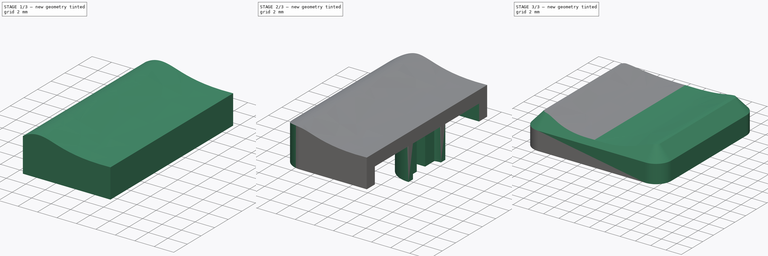
[diagram: build sequence overview — one tinted view per stage of 3, left to right]
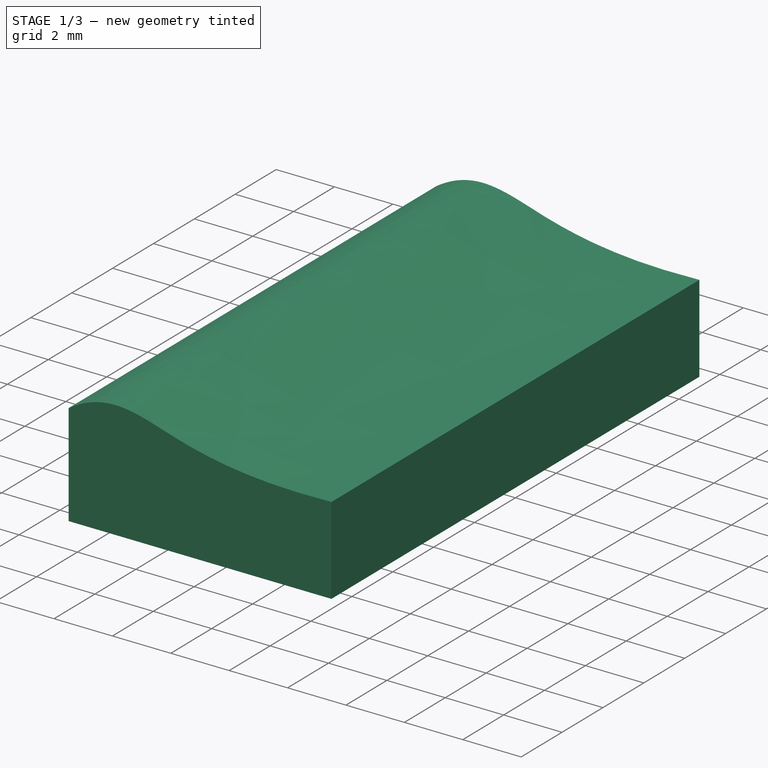
[diagram: stage 1 of 3 — iso view after this stage's code; geometry added in this stage tinted green]
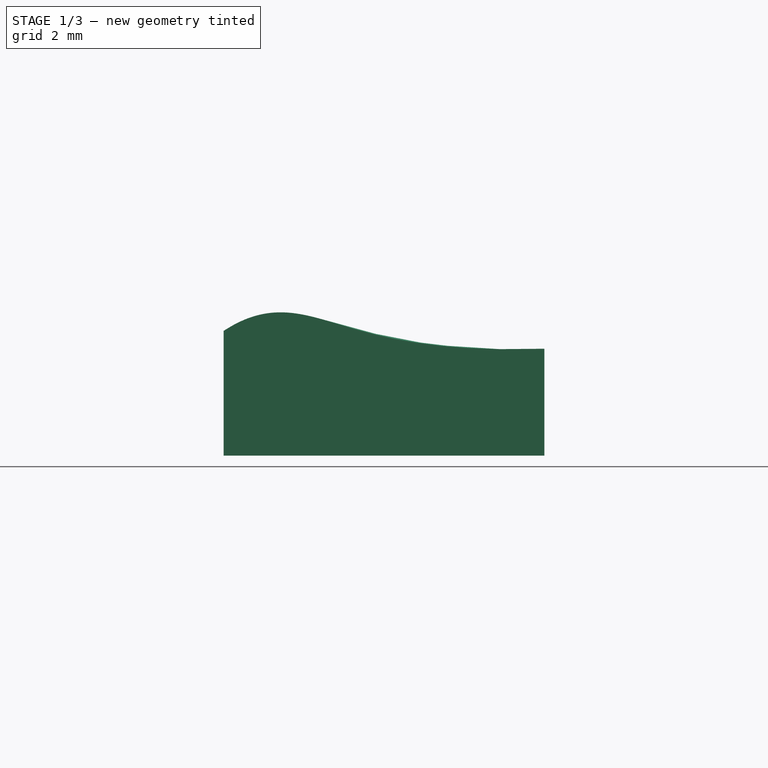
[diagram: stage 1 of 3 — front view after this stage's code; geometry added in this stage tinted green]
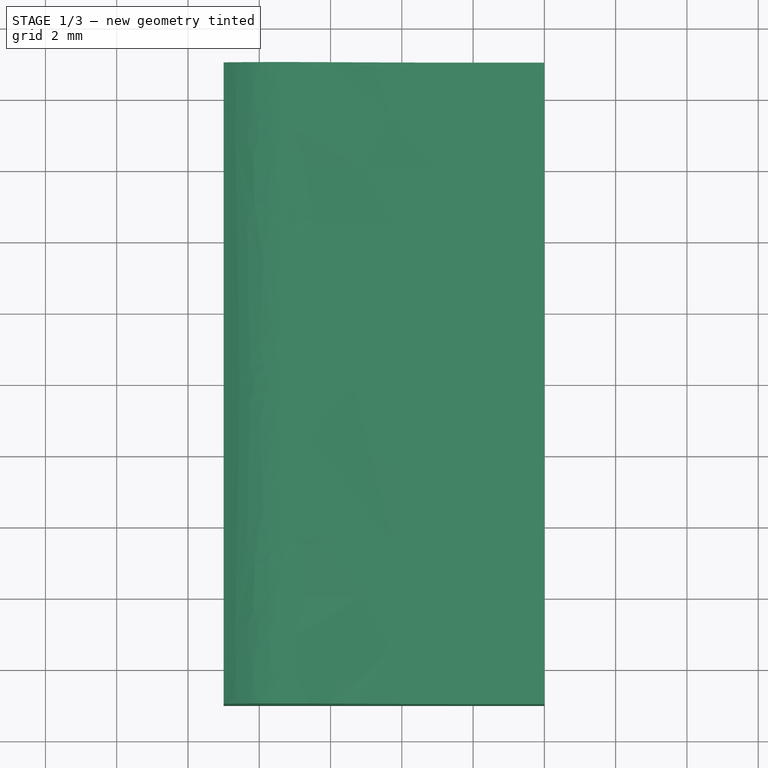
[diagram: stage 1 of 3 — top view after this stage's code; geometry added in this stage tinted green]
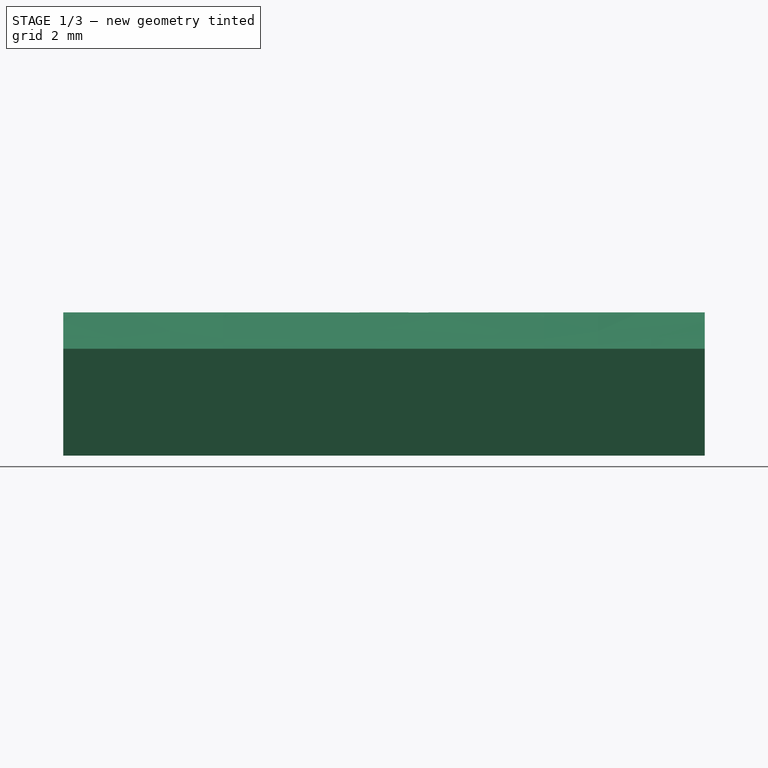
[diagram: stage 1 of 3 — right view after this stage's code; geometry added in this stage tinted green]
FCSTD DOCUMENT  (FreeCAD 1.0R39319 (Git))
Label: PLASTIC-LOW-PROFILE-KEYCAP_THT
License: All rights reserved
LicenseURL: https://en.wikipedia.org/wiki/All_rights_reserved
objects: Sketcher::SketchObject×10, PartDesign::Pad×3, PartDesign::Pocket×2, PartDesign::Plane×1, PartDesign::SubtractivePipe×1, PartDesign::Mirrored×1, PartDesign::CoordinateSystem×1, PartDesign::Body×1
note: 43 computed .brp shape members not serialized (recipe doc carries the construction recipe); baked Part::Feature solids carry a one-line shape summary decoded from their .brp

FEATURE [Sketcher::SketchObject] Sketch
  ArcFitTolerance = 0
  AttachmentSupport = -> [XY_Plane]
  FullyConstrained = true
  MakeInternals = false
  MapMode = 5
  sketch-geometry (5):
    g0: LineSegment StartX=-9 StartY=-9 StartZ=0 EndX=-9 EndY=9 EndZ=0
    g1: LineSegment StartX=-9 StartY=9 StartZ=0 EndX=0 EndY=9 EndZ=0
    g2: LineSegment StartX=0 StartY=-9 StartZ=0 EndX=-9 EndY=-9 EndZ=0
    g3: GeomPoint [constr] X=0 Y=0 Z=0
    g4: LineSegment StartX=0 StartY=9 StartZ=0 EndX=0 EndY=-9 EndZ=0
  constraints (12):
    c: Horizontal(g2)
    c: Vertical(g0)
    c: Coincident(g3,g-1)
    c: Vertical(g4)
    c: Coincident(g1,g4)
    c: Coincident(g2,g4)
    c: Horizontal(g1)
    c: Symmetric(g2,g1,g3)
    c: DistanceY(g4,g4) = 18
    c: DistanceX(g0,g1) = 9
    c: Coincident(g0,g2)
    c: Coincident(g0,g1)
FEATURE [PartDesign::Pad] Pad
  Direction = (0,0,1)
  Length = 2.7
  Length2 = 10
  Profile = -> Sketch
  ReferenceAxis = -> Sketch [N_Axis]
  Refine = true
  Suppressed = false
  Type = 0
FEATURE [Sketcher::SketchObject] Sketch001
  ArcFitTolerance = 0
  AttachmentSupport = -> [XZ_Plane]
  FullyConstrained = false
  MakeInternals = false
  MapMode = 5
  Placement = pos=(0,0,0) rot=(1,0,0;1.5708rad)
  sketch-geometry (12):
    g0: LineSegment StartX=-9 StartY=2.7 StartZ=0 EndX=0 EndY=2.7 EndZ=0
    g1: LineSegment StartX=0 StartY=3 StartZ=0 EndX=0 EndY=2.7 EndZ=0
    g2: LineSegment StartX=-9 StartY=2.7 StartZ=0 EndX=-9 EndY=3.5 EndZ=0
    g3-g7: Circle [constr] x5 (B-spline internal-alignment scaffolding for g8; pole/knot coordinates omitted)
    g8: BSplineCurve PolesCount=5 KnotsCount=3 Degree=3 IsPeriodic=0
    g9: GeomPoint [constr] X=0 Y=3 Z=0
    g10: GeomPoint [constr] X=-5.37681 Y=3.56724 Z=0
    g11: GeomPoint [constr] X=-9 Y=3.5 Z=0
  constraints (18):
    c: Horizontal(g0)
    c: PointOnObject(g0,g-2)
    c: DistanceY(g-1,g0) = 2.7
    c: DistanceX(g0,g0) = 9
    c: PointOnObject(g1,g-2)
    c: Coincident(g1,g0)
    c: Coincident(g2,g0)
    c: Vertical(g2)
    c: DistanceY(g1,g1) = 0.3
    c: Weight(g3) = 1
    c: Coincident(g8,g1)
    c: Equal(g3, g4-g7) x4
    c: Coincident(g8,g2)
    c: InternalAlignment(g3-g7 -> g8) x5
    c: InternalAlignment(g9,g8)
    c: InternalAlignment(g10,g8)
    c: InternalAlignment(g11,g8)
    c: Distance(g2,g-1) = 3.5
FEATURE [PartDesign::Pad] Pad001
  BaseFeature = -> Pad
  Direction = (0,-1,2e-16)
  Length = 18
  Length2 = 10
  Midplane = true
  Profile = -> Sketch001
  ReferenceAxis = -> Sketch001 [N_Axis]
  Refine = true
  Suppressed = false
  Type = 0
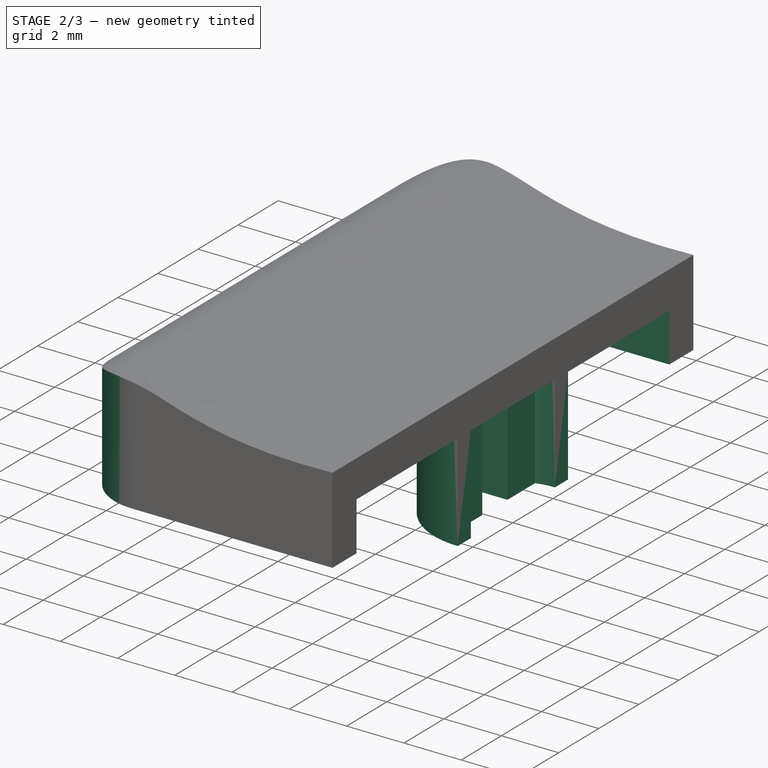
[diagram: stage 2 of 3 — iso view after this stage's code; geometry added in this stage tinted green]
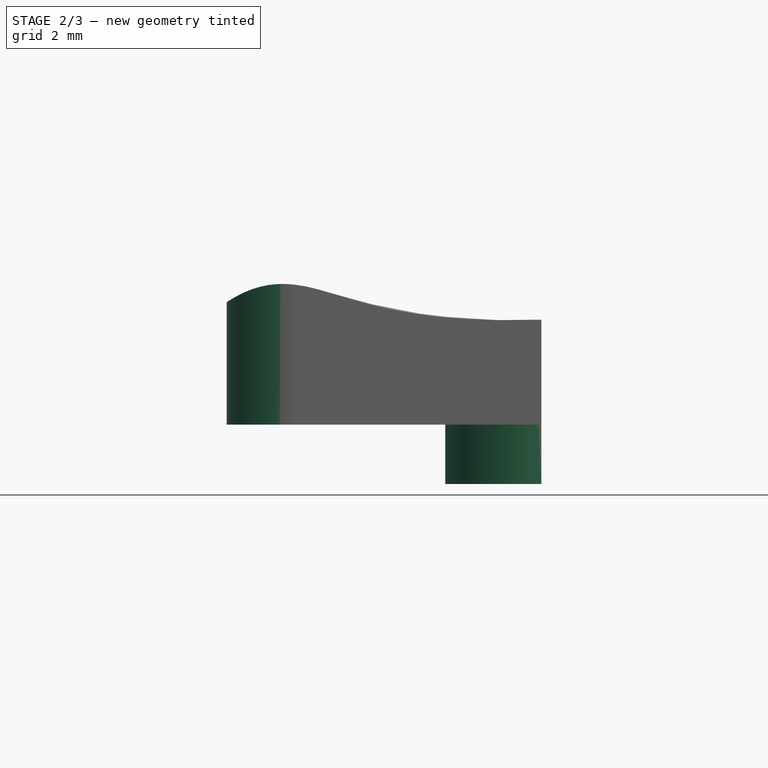
[diagram: stage 2 of 3 — front view after this stage's code; geometry added in this stage tinted green]
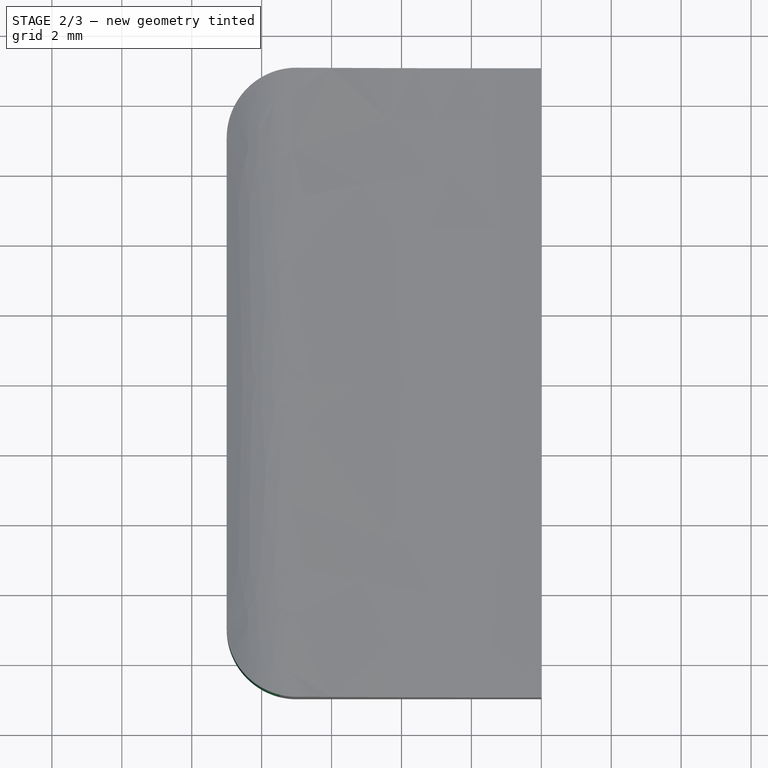
[diagram: stage 2 of 3 — top view after this stage's code; geometry added in this stage tinted green]
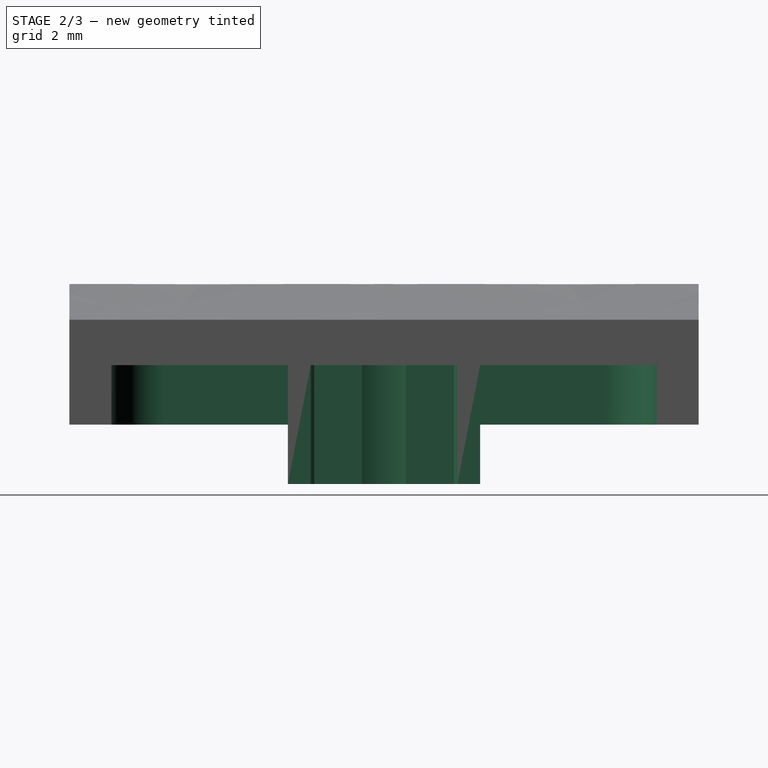
[diagram: stage 2 of 3 — right view after this stage's code; geometry added in this stage tinted green]
FEATURE [Sketcher::SketchObject] Sketch002
  ArcFitTolerance = 0
  AttachmentSupport = -> [XY_Plane]
  FullyConstrained = true
  MakeInternals = false
  MapMode = 5
  sketch-geometry (14):
    g0: LineSegment [constr] StartX=0 StartY=9 StartZ=0 EndX=-7 EndY=9 EndZ=0
    g1: LineSegment [constr] StartX=-9 StartY=7 StartZ=0 EndX=-9 EndY=-7 EndZ=0
    g2: LineSegment [constr] StartX=-7 StartY=-9 StartZ=0 EndX=0 EndY=-9 EndZ=0
    g3: LineSegment [constr] StartX=0 StartY=-9 StartZ=0 EndX=0 EndY=9 EndZ=0
    g4: ArcOfCircle CenterX=-7 CenterY=7 CenterZ=0 NormalX=0 NormalY=0 NormalZ=1 AngleXU=0 Radius=2 StartAngle=1.5708 EndAngle=3.14159
    g5: ArcOfCircle CenterX=-7 CenterY=-7 CenterZ=0 NormalX=0 NormalY=0 NormalZ=1 AngleXU=0 Radius=2 StartAngle=3.14159 EndAngle=4.71239
    g6: LineSegment StartX=-9 StartY=7 StartZ=0 EndX=-10 EndY=7 EndZ=0
    g7: LineSegment StartX=-10 StartY=7 StartZ=0 EndX=-10 EndY=10 EndZ=0
    g8: LineSegment StartX=-10 StartY=10 StartZ=0 EndX=-7 EndY=10 EndZ=0
    g9: LineSegment StartX=-9 StartY=-7 StartZ=0 EndX=-10 EndY=-7 EndZ=0
    g10: LineSegment StartX=-7 StartY=-9 StartZ=0 EndX=-7 EndY=-10 EndZ=0
    g11: LineSegment StartX=-10 StartY=-7 StartZ=0 EndX=-10 EndY=-10 EndZ=0
    g12: LineSegment StartX=-10 StartY=-10 StartZ=0 EndX=-7 EndY=-10 EndZ=0
    g13: LineSegment StartX=-7 StartY=10 StartZ=0 EndX=-7 EndY=9 EndZ=0
  constraints (37):
    c: Coincident(g2,g3)
    c: Coincident(g3,g0)
    c: Horizontal(g0)
    c: Horizontal(g2)
    c: Vertical(g1)
    c: Vertical(g3)
    c: Symmetric(g0,g2,g-1)
    c: Tangent(g0,g4) = -1.5708
    c: Tangent(g1,g4) = -1.5708
    c: Tangent(g1,g5) = -1.5708
    c: Tangent(g2,g5) = -1.5708
    c: Equal(g4,g5)
    c: Diameter(g4) = 4
    c: DistanceY(g3,g3) = 18
    c: DistanceX(g1,g0) = 9
    c: Coincident(g6,g4)
    c: Coincident(g7,g6)
    c: Vertical(g7)
    c: Coincident(g8,g7)
    c: Coincident(g9,g5)
    c: Horizontal(g9)
    c: Coincident(g10,g5)
    c: Coincident(g11,g9)
    c: Vertical(g11)
    c: Coincident(g12,g10)
    c: Horizontal(g12)
    c: Coincident(g11,g12)
    c: Vertical(g10)
    c: Horizontal(g8)
    c: Horizontal(g6)
    c: Equal(g6,g10)
    c: Equal(g10,g9)
    c: Coincident(g13,g8)
    c: Coincident(g13,g4)
    c: Vertical(g13)
    c: DistanceX(g6,g4) = 1
    c: Equal(g6,g13)
FEATURE [PartDesign::Pocket] Pocket
  BaseFeature = -> Pad001
  Direction = (0,0,-1)
  Length = 10
  Length2 = 5
  Profile = -> Sketch002
  ReferenceAxis = -> Sketch002 [N_Axis]
  Refine = true
  Reversed = true
  Suppressed = false
  Type = 0
FEATURE [Sketcher::SketchObject] Sketch003
  ArcFitTolerance = 0
  AttachmentSupport = -> [XY_Plane]
  FullyConstrained = true
  MakeInternals = false
  MapMode = 5
  sketch-geometry (7):
    g0: LineSegment StartX=-7.0342e-12 StartY=7.8 StartZ=0 EndX=-6.25 EndY=7.8 EndZ=0
    g1: LineSegment StartX=-7.75 StartY=6.3 StartZ=0 EndX=-7.75 EndY=-6.3 EndZ=0
    g2: LineSegment StartX=-6.25 StartY=-7.8 StartZ=0 EndX=0 EndY=-7.8 EndZ=0
    g3: LineSegment StartX=0 StartY=-7.8 StartZ=0 EndX=0 EndY=0 EndZ=0
    g4: ArcOfCircle CenterX=-6.25 CenterY=6.3 CenterZ=0 NormalX=0 NormalY=0 NormalZ=1 AngleXU=0 Radius=1.5 StartAngle=1.5708 EndAngle=3.14159
    g5: ArcOfCircle CenterX=-6.25 CenterY=-6.3 CenterZ=0 NormalX=0 NormalY=0 NormalZ=1 AngleXU=0 Radius=1.5 StartAngle=3.14159 EndAngle=4.71239
    g6: LineSegment StartX=0 StartY=0 StartZ=0 EndX=-7.0342e-12 EndY=7.8 EndZ=0
  constraints (17):
    c: Coincident(g2,g3)
    c: Coincident(g6,g0)
    c: Horizontal(g0)
    c: Horizontal(g2)
    c: Vertical(g1)
    c: Vertical(g3)
    c: Symmetric(g0,g2,g-1)
    c: Tangent(g0,g4) = -1.5708
    c: Tangent(g1,g4) = -1.5708
    c: Tangent(g1,g5) = -1.5708
    c: Tangent(g2,g5) = -1.5708
    c: Equal(g4,g5)
    c: Diameter(g4) = 3
    c: DistanceX(g1,g0) = 7.75
    c: DistanceY(g3,g6) = 15.6
    c: Coincident(g3,g6)
    c: Coincident(g3,g-1)
FEATURE [PartDesign::Pocket] Pocket001
  BaseFeature = -> Pocket
  Direction = (0,0,-1)
  Length = 1.7
  Length2 = 5
  Profile = -> Sketch003
  ReferenceAxis = -> Sketch003 [N_Axis]
  Reversed = true
  Suppressed = false
  Type = 0
FEATURE [Sketcher::SketchObject] Sketch004
  ArcFitTolerance = 0
  AttachmentSupport = -> [Pocket001]
  FullyConstrained = true
  MakeInternals = false
  MapMode = 5
  Placement = pos=(0,0,1.7) rot=(1,0,0;3.14159rad)
  sketch-geometry (11):
    g0: ArcOfCircle CenterX=0 CenterY=0 CenterZ=0 NormalX=0 NormalY=0 NormalZ=1 AngleXU=0 Radius=2.75 StartAngle=1.5708 EndAngle=4.71239
    g1: ArcOfCircle CenterX=0 CenterY=0 CenterZ=0 NormalX=0 NormalY=0 NormalZ=1 AngleXU=0 Radius=2.09688 StartAngle=1.5708 EndAngle=1.87596
    g2: LineSegment StartX=1e-16 StartY=2.75 StartZ=0 EndX=1e-16 EndY=2.09688 EndZ=0
    g3: LineSegment StartX=-5e-16 StartY=-2.09688 StartZ=0 EndX=-5e-16 EndY=-2.75 EndZ=0
    g4: LineSegment StartX=-2 StartY=0.63 StartZ=0 EndX=-0.63 EndY=0.63 EndZ=0
    g5: LineSegment StartX=-0.63 StartY=0.63 StartZ=0 EndX=-0.63 EndY=2 EndZ=0
    g6: LineSegment StartX=-2 StartY=-0.63 StartZ=0 EndX=-0.63 EndY=-0.63 EndZ=0
    g7: LineSegment StartX=-0.63 StartY=-0.63 StartZ=0 EndX=-0.63 EndY=-2 EndZ=0
    g8: ArcOfCircle CenterX=0 CenterY=0 CenterZ=0 NormalX=0 NormalY=0 NormalZ=1 AngleXU=0 Radius=2.09688 StartAngle=2.83643 EndAngle=3.44675
    g9: ArcOfCircle CenterX=0 CenterY=0 CenterZ=0 NormalX=0 NormalY=0 NormalZ=1 AngleXU=0 Radius=2.09688 StartAngle=4.40723 EndAngle=4.71239
    g10: LineSegment [constr] StartX=-2.09688 StartY=0 StartZ=0 EndX=-2.75 EndY=0 EndZ=0
  constraints (35):
    c: Coincident(g0,g-1)
    c: Coincident(g1,g0)
    c: Vertical(g2)
    c: PointOnObject(g2,g-2)
    c: Coincident(g0,g3)
    c: Coincident(g0,g2)
    c: Coincident(g2,g1)
    c: Coincident(g3,g9)
    c: Horizontal(g4)
    c: Coincident(g5,g4)
    c: Vertical(g5)
    c: PointOnObject(g6,g1)
    c: Horizontal(g6)
    c: Coincident(g7,g6)
    c: PointOnObject(g7,g1)
    c: Vertical(g7)
    c: Symmetric(g4,g6,g-1)
    c: Equal(g1,g8)
    c: Coincident(g1,g5)
    c: Coincident(g8,g4)
    c: Coincident(g1,g8)
    c: Equal(g8,g9)
    c: PointOnObject(g8,g6)
    c: PointOnObject(g9,g7)
    c: Coincident(g8,g9)
    c: DistanceY(g6,g4) = 1.26
    c: DistanceX(g1,g0) = 0.63
    c: DistanceX(g4,g0) = 2
    c: PointOnObject(g10,g8)
    c: PointOnObject(g10,g0)
    c: PointOnObject(g10,g-1)
    c: PointOnObject(g10,g-1)
    c: Vertical(g3)
    c: PointOnObject(g3,g-2)
    c: Diameter(g0) = 5.5
FEATURE [PartDesign::Pad] Pad002
  BaseFeature = -> Pocket001
  Direction = (0,0,-1)
  Length = 3.4
  Length2 = 10
  Profile = -> Sketch004
  ReferenceAxis = -> Sketch004 [N_Axis]
  Suppressed = false
  Type = 0
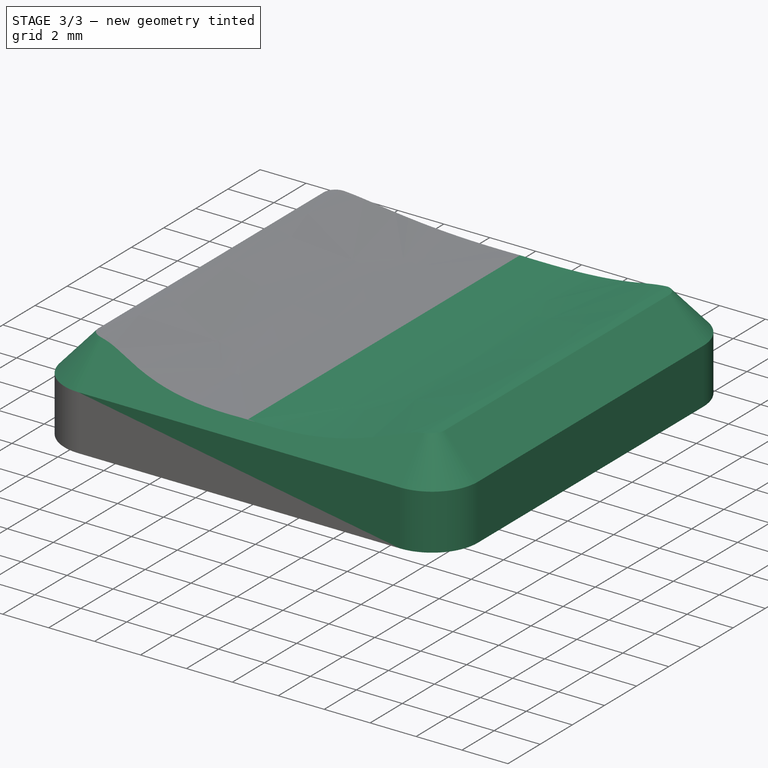
[diagram: stage 3 of 3 — iso view after this stage's code; geometry added in this stage tinted green]
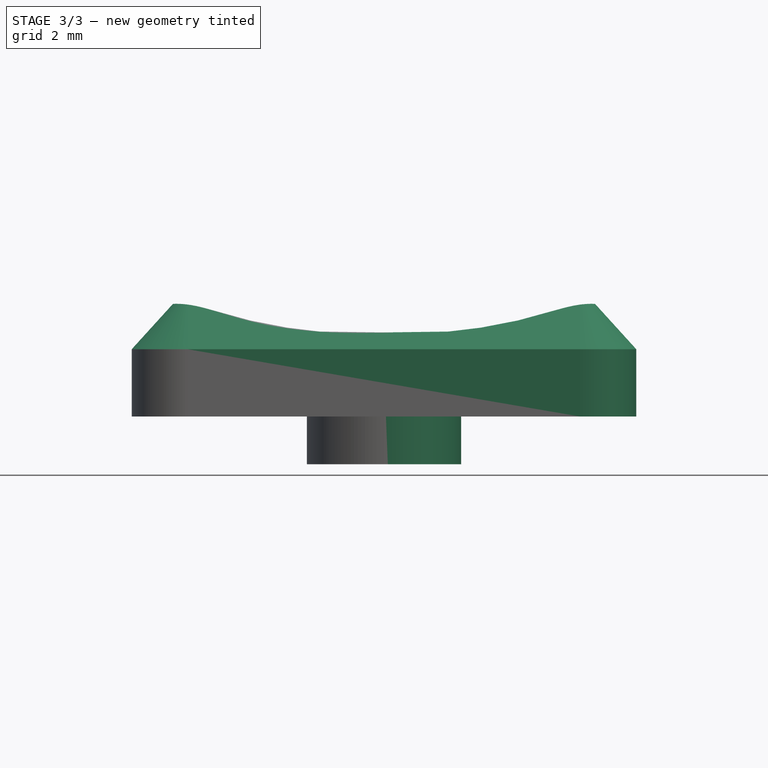
[diagram: stage 3 of 3 — front view after this stage's code; geometry added in this stage tinted green]
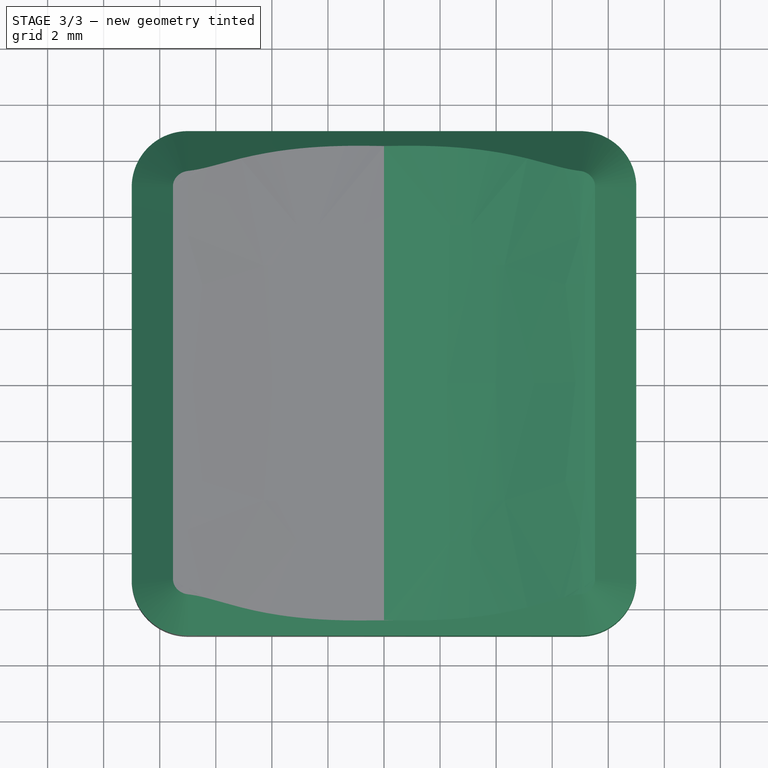
[diagram: stage 3 of 3 — top view after this stage's code; geometry added in this stage tinted green]
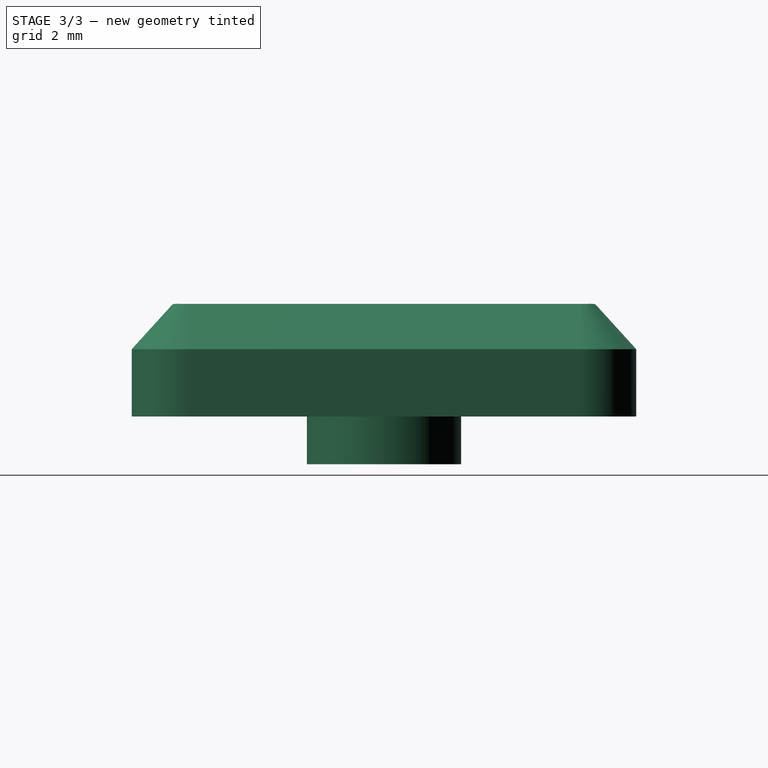
[diagram: stage 3 of 3 — right view after this stage's code; geometry added in this stage tinted green]
FEATURE [Sketcher::SketchObject] Sketch005
  ArcFitTolerance = 0
  AttachmentSupport = -> [XY_Plane]
  FullyConstrained = true
  MakeInternals = false
  MapMode = 5
  sketch-geometry (13):
    g0: LineSegment StartX=-2.22 StartY=-1.5 StartZ=0 EndX=-3.48 EndY=-1.5 EndZ=0
    g1: LineSegment StartX=-3.48 StartY=-1.5 StartZ=0 EndX=-3.48 EndY=-0.5 EndZ=0
    g2: LineSegment StartX=-3.48 StartY=-0.5 StartZ=0 EndX=-3.35 EndY=-0.5 EndZ=0
    g3: LineSegment StartX=-2.22 StartY=-0.5 StartZ=0 EndX=-2.22 EndY=-1.5 EndZ=0
    g4: LineSegment StartX=-2.22 StartY=0.5 StartZ=0 EndX=-2.35 EndY=0.5 EndZ=0
    g5: LineSegment StartX=-3.48 StartY=0.5 StartZ=0 EndX=-3.48 EndY=1.5 EndZ=0
    g6: LineSegment StartX=-3.48 StartY=1.5 StartZ=0 EndX=-2.22 EndY=1.5 EndZ=0
    g7: LineSegment StartX=-2.22 StartY=1.5 StartZ=0 EndX=-2.22 EndY=0.5 EndZ=0
    g8: LineSegment StartX=-2.35 StartY=-0.5 StartZ=0 EndX=-2.35 EndY=0.5 EndZ=0
    g9: LineSegment StartX=-3.35 StartY=-0.5 StartZ=0 EndX=-3.35 EndY=0.5 EndZ=0
    g10: LineSegment StartX=-2.35 StartY=-0.5 StartZ=0 EndX=-2.22 EndY=-0.5 EndZ=0
    g11: LineSegment StartX=-3.35 StartY=0.5 StartZ=0 EndX=-3.48 EndY=0.5 EndZ=0
    g12: GeomPoint [constr] X=-2.85 Y=-1.5 Z=0
  constraints (36):
    c: Coincident(g0,g1)
    c: Coincident(g1,g2)
    c: Coincident(g10,g3)
    c: Coincident(g3,g0)
    c: Horizontal(g0)
    c: Horizontal(g2)
    c: Vertical(g1)
    c: Vertical(g3)
    c: Coincident(g11,g5)
    c: Coincident(g5,g6)
    c: Coincident(g6,g7)
    c: Coincident(g7,g4)
    c: Horizontal(g4)
    c: Horizontal(g6)
    c: Vertical(g5)
    c: Vertical(g7)
    c: Vertical(g8)
    c: Vertical(g1,g11)
    c: Vertical(g10,g4)
    c: Coincident(g2,g9)
    c: Coincident(g10,g8)
    c: Coincident(g4,g8)
    c: Coincident(g11,g9)
    c: Equal(g2,g10)
    c: Equal(g1,g5)
    c: Symmetric(g2,g9,g-1)
    c: Horizontal(g11)
    c: Horizontal(g2,g8)
    c: Horizontal(g4,g9)
    c: Horizontal(g10)
    c: Symmetric(g0,g0,g12)
    c: DistanceX(g12,g-1) = 2.85
    c: DistanceX(g0,g0) = 1.26
    c: DistanceX(g2,g8) = 1
    c: DistanceY(g0,g5) = 3
    c: DistanceY(g1,g1) = 1
FEATURE [Sketcher::SketchObject] Sketch006
  ArcFitTolerance = 0
  AttachmentSupport = -> [XZ_Plane]
  FullyConstrained = false
  MakeInternals = false
  MapMode = 5
  Placement = pos=(0,0,0) rot=(1,0,0;1.5708rad)
  sketch-geometry (30):
    g0: LineSegment StartX=-15 StartY=-2.3 StartZ=0 EndX=-15 EndY=-1.3 EndZ=0
    g1: LineSegment StartX=-15 StartY=-1.3 StartZ=0 EndX=15 EndY=-1.3 EndZ=0
    g2: LineSegment StartX=15 StartY=-1.3 StartZ=0 EndX=15 EndY=-2.3 EndZ=0
    g3: LineSegment StartX=15 StartY=-2.3 StartZ=0 EndX=-15 EndY=-2.3 EndZ=0
    g4: GeomPoint [constr] X=0 Y=-1.8 Z=0
    g5: LineSegment StartX=-15 StartY=-12.4 StartZ=0 EndX=-15 EndY=-10.8 EndZ=0
    g6: LineSegment StartX=-15 StartY=-10.8 StartZ=0 EndX=15 EndY=-10.8 EndZ=0
    g7: LineSegment StartX=15 StartY=-10.8 StartZ=0 EndX=15 EndY=-12.4 EndZ=0
    g8: LineSegment StartX=15 StartY=-12.4 StartZ=0 EndX=-15 EndY=-12.4 EndZ=0
    g9: GeomPoint [constr] X=0 Y=-11.6 Z=0
    g10: LineSegment [constr] StartX=-7.5 StartY=-8 StartZ=0 EndX=-7.5 EndY=-3 EndZ=0
    g11: LineSegment [constr] StartX=-7.5 StartY=-3 StartZ=0 EndX=7.5 EndY=-3 EndZ=0
    g12: LineSegment [constr] StartX=7.5 StartY=-3 StartZ=0 EndX=7.5 EndY=-8 EndZ=0
    g13: LineSegment [constr] StartX=7.5 StartY=-8 StartZ=0 EndX=-7.5 EndY=-8 EndZ=0
    g14: GeomPoint [constr] X=0 Y=-5.5 Z=0
    g15: LineSegment StartX=-11.0572 StartY=-9 StartZ=0 EndX=-11.0572 EndY=-8 EndZ=0
    g16: LineSegment StartX=-11.0572 StartY=-8 StartZ=0 EndX=11.0572 EndY=-8 EndZ=0
    g17: LineSegment StartX=11.0572 StartY=-8 StartZ=0 EndX=11.0572 EndY=-9 EndZ=0
    g18: GeomPoint [constr] X=0 Y=-8.5 Z=0
    g19: LineSegment StartX=-11.0572 StartY=-9 StartZ=0 EndX=11.0572 EndY=-9 EndZ=0
    g20: LineSegment StartX=-3.7807 StartY=-10.8 StartZ=0 EndX=-3.7807 EndY=-9 EndZ=0
    g21: LineSegment StartX=-3.7807 StartY=-9 StartZ=0 EndX=3.7807 EndY=-9 EndZ=0
    g22: LineSegment StartX=3.7807 StartY=-9 StartZ=0 EndX=3.7807 EndY=-10.8 EndZ=0
    g23: LineSegment StartX=3.7807 StartY=-10.8 StartZ=0 EndX=-3.7807 EndY=-10.8 EndZ=0
    g24: GeomPoint [constr] X=0 Y=-9.9 Z=0
    g25: LineSegment StartX=-5.52707 StartY=-3 StartZ=0 EndX=-5.52707 EndY=0 EndZ=0
    g26: LineSegment StartX=-5.52707 StartY=0 StartZ=0 EndX=5.52707 EndY=0 EndZ=0
    g27: LineSegment StartX=5.52707 StartY=0 StartZ=0 EndX=5.52707 EndY=-3 EndZ=0
    g28: LineSegment StartX=5.52707 StartY=-3 StartZ=0 EndX=-5.52707 EndY=-3 EndZ=0
    g29: GeomPoint [constr] X=0 Y=-1.5 Z=0
  constraints (75):
    c: Coincident(g0,g1)
    c: Coincident(g1,g2)
    c: Coincident(g2,g3)
    c: Coincident(g3,g0)
    c: Horizontal(g1)
    c: Horizontal(g3)
    c: Vertical(g0)
    c: Vertical(g2)
    c: Symmetric(g1,g0,g4)
    c: PointOnObject(g4,g-2)
    c: Coincident(g5,g6)
    c: Coincident(g6,g7)
    c: Coincident(g7,g8)
    c: Coincident(g8,g5)
    c: Horizontal(g6)
    c: Horizontal(g8)
    c: Vertical(g5)
    c: Vertical(g7)
    c: Symmetric(g6,g5,g9)
    c: PointOnObject(g9,g-2)
    c: DistanceY(g7,g7) = 1.6
    c: DistanceY(g2,g2) = 1
    c: Equal(g3,g6)
    c: DistanceX(g8,g8) = 30
    c: DistanceY(g6,g2) = 8.5
    c: DistanceY(g5,g-1) = 10.8
    c: Coincident(g10,g11)
    c: Coincident(g11,g12)
    c: Coincident(g12,g13)
    c: Coincident(g13,g10)
    c: Horizontal(g11)
    c: Horizontal(g13)
    c: Vertical(g10)
    c: Vertical(g12)
    c: Symmetric(g11,g10,g14)
    c: PointOnObject(g14,g-2)
    c: DistanceY(g12,g12) = 5
    c: DistanceX(g13,g13) = 15
    c: Coincident(g15,g16)
    c: Coincident(g16,g17)
    c: Horizontal(g16)
    c: Vertical(g15)
    c: Vertical(g17)
    c: Symmetric(g16,g15,g18)
    c: PointOnObject(g18,g-2)
    c: PointOnObject(g12,g16)
    c: DistanceY(g17,g17) = 1
    c: Coincident(g19,g15)
    c: Coincident(g19,g17)
    c: Horizontal(g19)
    c: Coincident(g20,g21)
    c: Coincident(g21,g22)
    c: Coincident(g22,g23)
    c: Coincident(g23,g20)
    c: Horizontal(g21)
    c: Horizontal(g23)
    c: Vertical(g20)
    c: Vertical(g22)
    c: Symmetric(g21,g20,g24)
    c: PointOnObject(g24,g-2)
    c: DistanceY(g22,g22) = 1.8
    c: PointOnObject(g21,g19)
    c: PointOnObject(g22,g6)
    c: Coincident(g25,g26)
    c: Coincident(g26,g27)
    c: Coincident(g27,g28)
    c: Coincident(g28,g25)
    c: Horizontal(g26)
    c: Horizontal(g28)
    c: Vertical(g25)
    c: Vertical(g27)
    c: Symmetric(g26,g25,g29)
    c: PointOnObject(g29,g-2)
    c: PointOnObject(g26,g-1)
    c: PointOnObject(g27,g11)
FEATURE [Sketcher::SketchObject] Sketch007
  ArcFitTolerance = 0
  AttachmentSupport = -> [XZ_Plane]
  FullyConstrained = false
  MakeInternals = false
  MapMode = 5
  Placement = pos=(0,0,0) rot=(1,0,0;1.5708rad)
  sketch-geometry (14):
    g0: LineSegment StartX=-8.25 StartY=2.85 StartZ=0 EndX=0 EndY=2.85 EndZ=0
    g1-g6: Circle [constr] x6 (B-spline internal-alignment scaffolding for g7; pole/knot coordinates omitted)
    g7: BSplineCurve PolesCount=6 KnotsCount=4 Degree=3 IsPeriodic=0
    g8-g11: GeomPoint [constr] x4 (B-spline internal-alignment scaffolding for g7; pole/knot coordinates omitted)
    g12: GeomPoint [constr] X=-7.09131 Y=3.79 Z=0
    g13: LineSegment StartX=0 StartY=2.94891 StartZ=0 EndX=0 EndY=2.85 EndZ=0
  constraints (14):
    c: Horizontal(g0)
    c: PointOnObject(g0,g-2)
    c: DistanceY(g-1,g0) = 2.85
    c: DistanceX(g0,g0) = 8.25
    c: Weight(g1) = 1
    c: Coincident(g7,g0)
    c: Equal(g1, g2-g6) x5
    c: PointOnObject(g7,g-2)
    c: InternalAlignment(g1-g6 -> g7) x6
    c: InternalAlignment(g8-g11 -> g7) x4
    c: PointOnObject(g12,g7)
    c: DistanceY(g0,g12) = 0.94
    c: Coincident(g13,g7)
    c: Coincident(g13,g0)
FEATURE [Sketcher::SketchObject] Sketch008
  ArcFitTolerance = 1e-06
  AttachmentSupport = -> [YZ_Plane]
  FullyConstrained = true
  MakeInternals = false
  MapMode = 5
  Placement = pos=(0,0,0) rot=(0.57735,0.57735,0.57735;2.0944rad)
  sketch-geometry (3):
    g0: LineSegment StartX=-9 StartY=2.4 StartZ=0 EndX=-7.5 EndY=4.05 EndZ=0
    g1: LineSegment StartX=-7.5 StartY=4.05 StartZ=0 EndX=-9 EndY=4.05 EndZ=0
    g2: LineSegment StartX=-9 StartY=4.05 StartZ=0 EndX=-9 EndY=2.4 EndZ=0
  constraints (9):
    c: Coincident(g1,g0)
    c: Coincident(g2,g1)
    c: Coincident(g2,g0)
    c: Vertical(g2)
    c: Distance(g0,g-1) = 2.4
    c: Horizontal(g1)
    c: Distance(g-1,g1) = 4.05
    c: Distance(g-2,g2) = 9
    c: DistanceX(g1,g1) = 1.5
FEATURE [PartDesign::Plane] DatumPlane
  AttachmentOffset = pos=(0,0,2.4) rot=(0,0,1;0rad)
  AttachmentSupport = -> [Sketch008]
  Length = 60
  MapMode = 3
  Placement = pos=(0,0,2.4) rot=(0,0,-1;1.5708rad)
  ResizeMode = 0
  Width = 60
FEATURE [Sketcher::SketchObject] Sketch009
  ArcFitTolerance = 1e-06
  AttachmentSupport = -> [DatumPlane]
  FullyConstrained = true
  MakeInternals = false
  MapMode = 5
  Placement = pos=(0,0,2.4) rot=(0,0,-1;1.5708rad)
  sketch-geometry (7):
    g0: LineSegment StartX=-9 StartY=-8e-16 StartZ=0 EndX=-9 EndY=-7 EndZ=0
    g1: LineSegment StartX=-7 StartY=-9 StartZ=0 EndX=7 EndY=-9 EndZ=0
    g2: LineSegment StartX=9 StartY=-7 StartZ=0 EndX=9 EndY=9e-16 EndZ=0
    g3: ArcOfCircle CenterX=-7 CenterY=-7 CenterZ=0 NormalX=0 NormalY=0 NormalZ=1 AngleXU=0 Radius=2 StartAngle=3.14159 EndAngle=4.71239
    g4: GeomPoint [constr] X=-9 Y=-9 Z=0
    g5: ArcOfCircle CenterX=7 CenterY=-7 CenterZ=0 NormalX=0 NormalY=0 NormalZ=1 AngleXU=0 Radius=2 StartAngle=4.71239 EndAngle=6.28319
    g6: GeomPoint [constr] X=9 Y=-9 Z=0
  constraints (17):
    c: Vertical(g0)
    c: Horizontal(g1)
    c: Vertical(g2)
    c: PointOnObject(g4,g0)
    c: PointOnObject(g4,g1)
    c: Tangent(g0,g3) = -1.5708
    c: Tangent(g1,g3) = -1.5708
    c: PointOnObject(g6,g2)
    c: PointOnObject(g6,g1)
    c: Tangent(g2,g5) = -1.5708
    c: Tangent(g1,g5) = -1.5708
    c: Equal(g0,g2)
    c: Distance(g1,g-1) = 9
    c: Distance(g2,g0) = 18
    c: Radius(g5) = 2
    c: Symmetric(g0,g2,g-1)
    c: Equal(g5,g3)
FEATURE [PartDesign::SubtractivePipe] SubtractivePipe
  AuxilleryCurvelinear = true
  AuxillerySpineTangent = false
  BaseFeature = -> Pad002
  Binormal = (0,0,0)
  Mode = 0
  Profile = -> Sketch008
  Refine = true
  Spine = -> Sketch009
  SpineTangent = false
  Suppressed = false
  Transformation = 0
  Transition = 1
FEATURE [PartDesign::Mirrored] Mirrored
  BaseFeature = -> SubtractivePipe
  MirrorPlane = -> YZ_Plane
  Refine = true
  Suppressed = false
  TransformMode = 1
FEATURE [PartDesign::CoordinateSystem] LCS_1
  AttacherType = Attacher::AttachEngine3D
  AttachmentSupport = -> [Mirrored]
  MapMode = 11
  Placement = pos=(0,0,1.7) rot=(0,1,0;3.14159rad)
FEATURE [PartDesign::Body] Body  label="PLASTIC-LOW-PROFILE-KEYCAP"
  AllowCompound = false
  Group = -> [Sketch,Pad,Sketch001,Pad001,Sketch002,Pocket,Sketch003,Pocket001,Sketch004,Pad002,Sketch005,Sketch006,Sketch007,Sketch008,DatumPlane,Sketch009,SubtractivePipe,Mirrored,LCS_1]
  Origin = -> Origin
  Tip = -> Mirrored
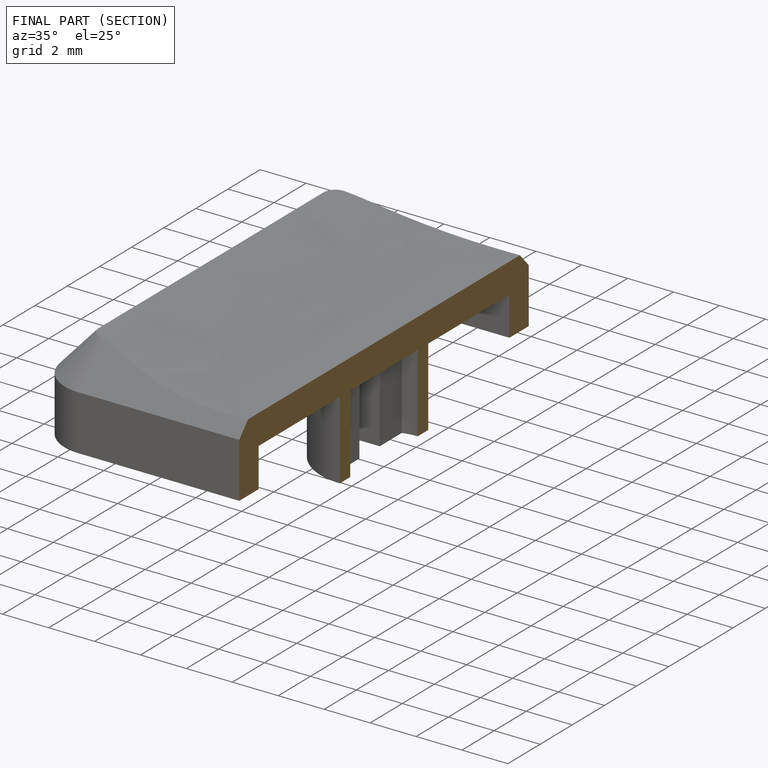
[diagram: finished part — half-section view (interior)]
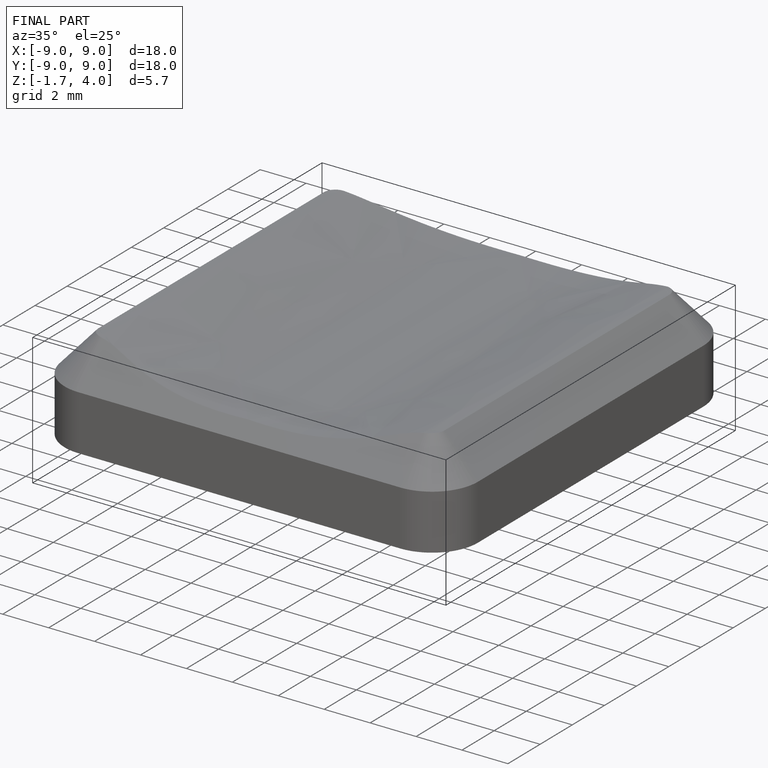
[diagram: finished part — iso view with bounding-box wireframe]
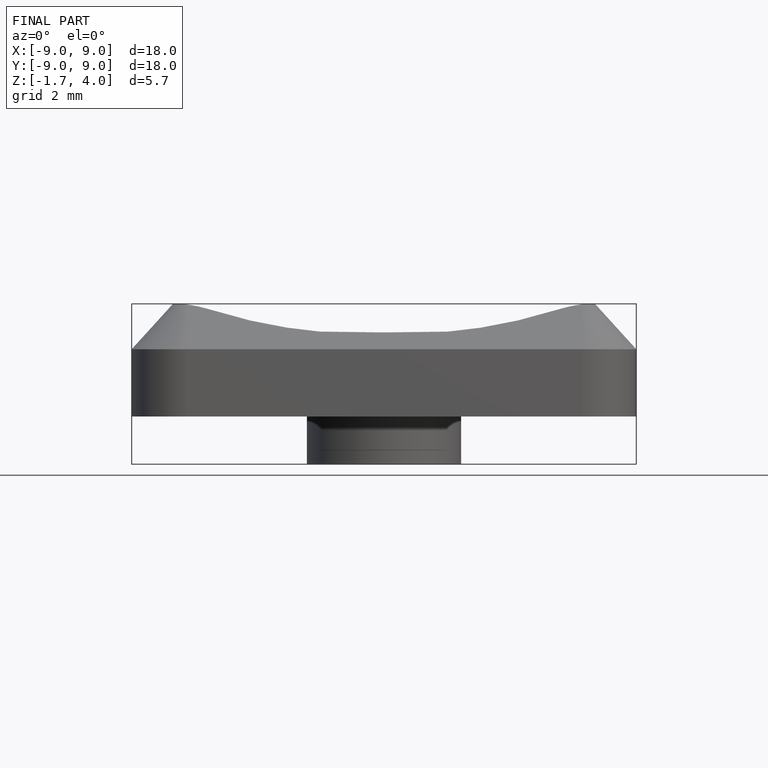
[diagram: finished part — front view with bounding-box wireframe]
